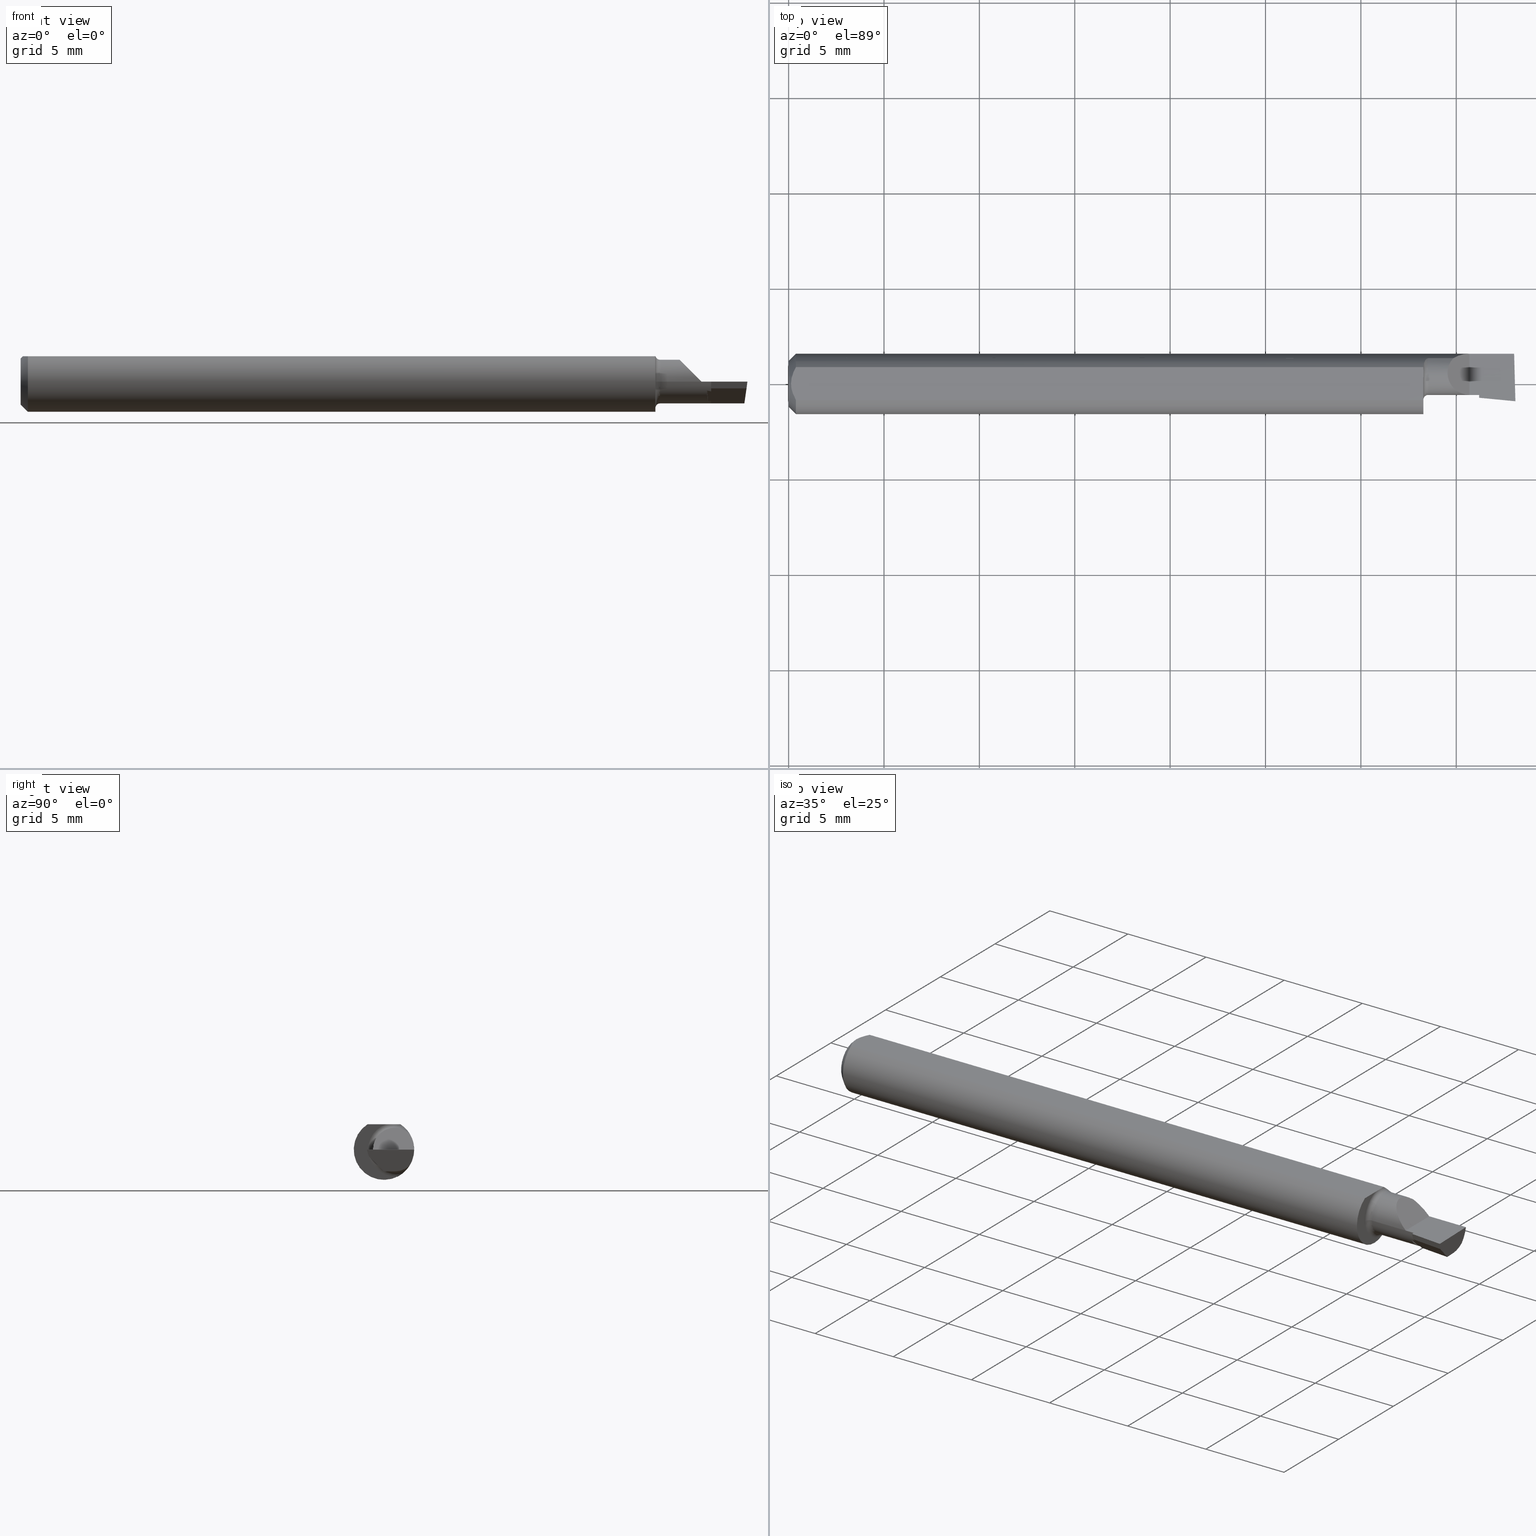
[diagram: canonical four-view strip — front | top / right | iso, engineering-drawing reading convention]
A machine part, canonical four-view strip (front | top / right | iso — engineering-drawing reading convention). The complete STEP part file that produces these views, byte-faithful:
ISO-10303-21;
HEADER;
FILE_DESCRIPTION (( 'STEP AP203' ),
    '1' );
FILE_NAME ('211839-LHB100150.STEP',
    '2024-08-22T21:21:53',
    ( '' ),
    ( '' ),
    'SwSTEP 2.0',
    'SolidWorks 2024',
    '' );
FILE_SCHEMA (( 'CONFIG_CONTROL_DESIGN' ));
ENDSEC;

DATA;
#1 = CALENDAR_DATE ( 2024, 22, 8 ) ;
#2 = CARTESIAN_POINT ( 'NONE',  ( 1.500000000000000222, 0.02239999999999998936, -0.04504999999999998589 ) ) ;
#3 = VERTEX_POINT ( 'NONE', #11 ) ;
#4 = PERSON_AND_ORGANIZATION ( #332, #501 ) ;
#5 = VECTOR ( 'NONE', #275, 39.37007874015747433 ) ;
#6 = LOCAL_TIME ( 14, 21, 53.00000000000000000, #223 ) ;
#7 = FACE_OUTER_BOUND ( 'NONE', #666, .T. ) ;
#8 = ORIENTED_EDGE ( 'NONE', *, *, #436, .T. ) ;
#9 = EDGE_CURVE ( 'NONE', #511, #424, #693, .T. ) ;
#10 = DIRECTION ( 'NONE',  ( -0.7071067811865432429, 0.000000000000000000, -0.7071067811865517916 ) ) ;
#11 = CARTESIAN_POINT ( 'NONE',  ( 0.004999999999989931769, 7.898418181085889318E-16, 0.05235000000000000070 ) ) ;
#12 = DATE_AND_TIME ( #657, #664 ) ;
#13 = EDGE_CURVE ( 'NONE', #648, #458, #558, .T. ) ;
#14 = CARTESIAN_POINT ( 'NONE',  ( 1.425000000000000266, -0.02842832138518472385, 9.604153102725926148E-18 ) ) ;
#15 = FACE_OUTER_BOUND ( 'NONE', #388, .T. ) ;
#16 = ORIENTED_EDGE ( 'NONE', *, *, #641, .T. ) ;
#17 = PERSON_AND_ORGANIZATION ( #332, #501 ) ;
#18 = AXIS2_PLACEMENT_3D ( 'NONE', #640, #270, #164 ) ;
#19 =( GEOMETRIC_REPRESENTATION_CONTEXT ( 3 ) GLOBAL_UNCERTAINTY_ASSIGNED_CONTEXT ( ( #672 ) ) GLOBAL_UNIT_ASSIGNED_CONTEXT ( ( #256, #516, #464 ) ) REPRESENTATION_CONTEXT ( 'NONE', 'WORKASPACE' ) );
#20 = DIRECTION ( 'NONE',  ( -1.000000000000000000, -0.000000000000000000, -0.000000000000000000 ) ) ;
#21 = ORIENTED_EDGE ( 'NONE', *, *, #651, .F. ) ;
#22 = MANIFOLD_SOLID_BREP ( 'Extrude7', #205 ) ;
#23 = EDGE_CURVE ( 'NONE', #385, #463, #404, .T. ) ;
#24 = CARTESIAN_POINT ( 'NONE',  ( 0.000000000000000000, 0.000000000000000000, 0.000000000000000000 ) ) ;
#25 = CARTESIAN_POINT ( 'NONE',  ( 0.004999999999989931769, 7.898418181085889318E-16, 0.05235000000000000070 ) ) ;
#26 = ORIENTED_EDGE ( 'NONE', *, *, #315, .F. ) ;
#27 = DIRECTION ( 'NONE',  ( -1.000000000000000000, 2.845674993400274571E-18, -0.000000000000000000 ) ) ;
#28 = CIRCLE ( 'NONE', #416, 0.009999999999999892655 ) ;
#29 = AXIS2_PLACEMENT_3D ( 'NONE', #105, #374, #478 ) ;
#30 = DIRECTION ( 'NONE',  ( -1.000000000000000000, 2.845674993400274571E-18, -0.000000000000000000 ) ) ;
#31 = EDGE_CURVE ( 'NONE', #458, #668, #504, .T. ) ;
#32 = DIRECTION ( 'NONE',  ( -8.593085830840275174E-19, -0.3019700370129922429, 0.9533174165755978757 ) ) ;
#33 = APPLICATION_CONTEXT ( 'configuration controlled 3d designs of mechanical parts and assemblies' ) ;
#34 = ORIENTED_EDGE ( 'NONE', *, *, #610, .T. ) ;
#35 = DIRECTION ( 'NONE',  ( -1.000000000000000000, 2.845674993400274571E-18, -0.000000000000000000 ) ) ;
#36 = CARTESIAN_POINT ( 'NONE',  ( 1.496746585366868887, -0.02723588404480196956, -0.02557432297574407931 ) ) ;
#37 = ORIENTED_EDGE ( 'NONE', *, *, #651, .T. ) ;
#38 = DIRECTION ( 'NONE',  ( 0.000000000000000000, 0.000000000000000000, -1.000000000000000000 ) ) ;
#39 = AXIS2_PLACEMENT_3D ( 'NONE', #457, #247, #622 ) ;
#40 = AXIS2_PLACEMENT_3D ( 'NONE', #541, #141, #345 ) ;
#41 = VERTEX_POINT ( 'NONE', #667 ) ;
#42 = AXIS2_PLACEMENT_3D ( 'NONE', #509, #27, #239 ) ;
#43 =( LENGTH_UNIT ( ) NAMED_UNIT ( * ) SI_UNIT ( $, .METRE. ) );
#44 = LINE ( 'NONE', #253, #480 ) ;
#45 = ADVANCED_FACE ( 'NONE', ( #130 ), #542, .T. ) ;
#46 = EDGE_LOOP ( 'NONE', ( #469, #244, #518, #682 ) ) ;
#47 = CARTESIAN_POINT ( 'NONE',  ( 1.310000000000000275, -0.03265000000000001235, 0.000000000000000000 ) ) ;
#48 = LINE ( 'NONE', #616, #471 ) ;
#49 = ORIENTED_EDGE ( 'NONE', *, *, #292, .F. ) ;
#50 = CARTESIAN_POINT ( 'NONE',  ( 1.405000000000000249, 0.06234999999999984999, 1.163414459189988826E-17 ) ) ;
#51 = DIRECTION ( 'NONE',  ( -2.845674993400274571E-18, -1.000000000000000000, 0.000000000000000000 ) ) ;
#52 = ORIENTED_EDGE ( 'NONE', *, *, #54, .T. ) ;
#53 = DIRECTION ( 'NONE',  ( -1.000000000000000000, -0.000000000000000000, -0.000000000000000000 ) ) ;
#54 = EDGE_CURVE ( 'NONE', #66, #505, #133, .T. ) ;
#55 = CARTESIAN_POINT ( 'NONE',  ( 0.009678036133109307534, -0.02325481837211496039, 0.05235000000000000070 ) ) ;
#56 = EDGE_LOOP ( 'NONE', ( #362, #566, #614, #311, #637 ) ) ;
#57 = COORDINATED_UNIVERSAL_TIME_OFFSET ( 8, 0, .BEHIND. ) ;
#58 = CARTESIAN_POINT ( 'NONE',  ( 1.320000000000000062, 0.05267366071428519758, 0.03336177403790670931 ) ) ;
#59 = ORIENTED_EDGE ( 'NONE', *, *, #128, .T. ) ;
#60 = PERSON_AND_ORGANIZATION ( #332, #501 ) ;
#61 = LINE ( 'NONE', #312, #597 ) ;
#62 = ORIENTED_EDGE ( 'NONE', *, *, #54, .F. ) ;
#63 = CALENDAR_DATE ( 2024, 22, 8 ) ;
#64 = CC_DESIGN_SECURITY_CLASSIFICATION ( #240, ( #346 ) ) ;
#65 = DIRECTION ( 'NONE',  ( -0.7071067811865516806, 0.000000000000000000, 0.7071067811865431318 ) ) ;
#66 = VERTEX_POINT ( 'NONE', #278 ) ;
#67 = APPLICATION_PROTOCOL_DEFINITION ( 'international standard', 'config_control_design', 1994, #33 ) ;
#68 = LINE ( 'NONE', #497, #336 ) ;
#69 = CARTESIAN_POINT ( 'NONE',  ( 1.310256932871702862, 0.02911433999418734653, 0.05235000000000000070 ) ) ;
#70 = MECHANICAL_CONTEXT ( 'NONE', #225, 'mechanical' ) ;
#71 = CARTESIAN_POINT ( 'NONE',  ( 0.000000000000000000, 0.02239999999999999977, 0.000000000000000000 ) ) ;
#72 = EDGE_LOOP ( 'NONE', ( #258, #21 ) ) ;
#73 = ADVANCED_FACE ( 'NONE', ( #547 ), #655, .F. ) ;
#74 = VECTOR ( 'NONE', #468, 39.37007874015748143 ) ;
#75 = VECTOR ( 'NONE', #53, 39.37007874015748143 ) ;
#76 = DIRECTION ( 'NONE',  ( -2.845674993400274956E-18, -1.000000000000000000, 0.000000000000000000 ) ) ;
#77 = LINE ( 'NONE', #489, #5 ) ;
#78 = CARTESIAN_POINT ( 'NONE',  ( 1.318537702541799472, 0.05267366071428532942, -0.03336177403790685503 ) ) ;
#79 = FACE_OUTER_BOUND ( 'NONE', #427, .T. ) ;
#80 = CC_DESIGN_PERSON_AND_ORGANIZATION_ASSIGNMENT ( #177, #604, ( #346 ) ) ;
#81 = ADVANCED_FACE ( 'NONE', ( #445 ), #440, .F. ) ;
#82 = ORIENTED_EDGE ( 'NONE', *, *, #662, .F. ) ;
#83 = DIRECTION ( 'NONE',  ( 0.02677973311238900783, -0.9996413586354002678, 2.516261953573446749E-16 ) ) ;
#84 = CIRCLE ( 'NONE', #121, 0.04505000000000000671 ) ;
#85 = AXIS2_PLACEMENT_3D ( 'NONE', #228, #173, #601 ) ;
#86 = DIRECTION ( 'NONE',  ( 0.1175789623991727040, 0.000000000000000000, 0.9930635365378863710 ) ) ;
#87 = CARTESIAN_POINT ( 'NONE',  ( 1.420965656909965347, 0.002454328612438455830, -0.04039634369917824430 ) ) ;
#88 = DIRECTION ( 'NONE',  ( 0.000000000000000000, 0.000000000000000000, 1.000000000000000000 ) ) ;
#89 = ORIENTED_EDGE ( 'NONE', *, *, #462, .F. ) ;
#90 = CARTESIAN_POINT ( 'NONE',  ( 0.01500000000000000465, 7.635672792683746671E-18, 0.06235000000000000264 ) ) ;
#91 =( BOUNDED_CURVE ( )  B_SPLINE_CURVE ( 3, ( #481, #692, #426, #124 ),
 .UNSPECIFIED., .F., .F. ) 
 B_SPLINE_CURVE_WITH_KNOTS ( ( 4, 4 ),
 ( 5.546277306536656404, 7.853981633974482790 ),
 .UNSPECIFIED. ) 
 CURVE ( )  GEOMETRIC_REPRESENTATION_ITEM ( )  RATIONAL_B_SPLINE_CURVE ( ( 1.000000000000000000, 0.6033122017620001776, 0.6033122017620001776, 1.000000000000000000 ) ) 
 REPRESENTATION_ITEM ( '' )  );
#92 = CARTESIAN_POINT ( 'NONE',  ( 1.372500000000000275, 0.05267366071428571800, 0.03336177403790620971 ) ) ;
#93 = EDGE_LOOP ( 'NONE', ( #522, #248, #653, #325 ) ) ;
#94 = CARTESIAN_POINT ( 'NONE',  ( 1.417174806059530834, -0.01419764798055399985, -0.02834783174770362860 ) ) ;
#95 = CC_DESIGN_PERSON_AND_ORGANIZATION_ASSIGNMENT ( #477, #649, ( #240 ) ) ;
#96 = ADVANCED_FACE ( 'NONE', ( #79 ), #493, .T. ) ;
#97 = CARTESIAN_POINT ( 'NONE',  ( 1.492807588596031021, 0.03372388044486961112, -0.04504999999999999977 ) ) ;
#98 = VECTOR ( 'NONE', #507, 39.37007874015748854 ) ;
#99 = AXIS2_PLACEMENT_3D ( 'NONE', #669, #349, #654 ) ;
#100 = ORIENTED_EDGE ( 'NONE', *, *, #273, .F. ) ;
#101 = B_SPLINE_CURVE_WITH_KNOTS ( 'NONE', 3,
 ( #221, #259, #55, #156, #214, #167 ),
 .UNSPECIFIED., .F., .F.,
 ( 4, 2, 4 ),
 ( 0.002133667072902290657, 0.002585433046183636171, 0.003037199019464981685 ),
 .UNSPECIFIED. ) ;
#102 = LINE ( 'NONE', #36, #182 ) ;
#103 = EDGE_LOOP ( 'NONE', ( #680, #201, #317, #351 ) ) ;
#104 = DIRECTION ( 'NONE',  ( -0.9953961983671787417, 0.09584575252022452252, 1.945710349607429389E-16 ) ) ;
#105 = CARTESIAN_POINT ( 'NONE',  ( 1.425000000000000266, 0.02239999999999999630, 0.000000000000000000 ) ) ;
#106 = ORIENTED_EDGE ( 'NONE', *, *, #255, .F. ) ;
#107 = EDGE_CURVE ( 'NONE', #185, #438, #525, .T. ) ;
#108 = ORIENTED_EDGE ( 'NONE', *, *, #462, .T. ) ;
#109 = ADVANCED_FACE ( 'NONE', ( #398 ), #335, .T. ) ;
#110 = LINE ( 'NONE', #475, #472 ) ;
#111 = DIRECTION ( 'NONE',  ( -1.000000000000000000, -0.000000000000000000, -0.000000000000000000 ) ) ;
#112 = VERTEX_POINT ( 'NONE', #446 ) ;
#113 = SHAPE_DEFINITION_REPRESENTATION ( #687, #423 ) ;
#114 = CARTESIAN_POINT ( 'NONE',  ( 1.316045261487122531, 0.05110091261051565720, 0.03573737896485319754 ) ) ;
#115 = ORIENTED_EDGE ( 'NONE', *, *, #610, .F. ) ;
#116 = PERSON_AND_ORGANIZATION_ROLE ( 'design_supplier' ) ;
#117 = EDGE_CURVE ( 'NONE', #569, #157, #277, .T. ) ;
#118 = CARTESIAN_POINT ( 'NONE',  ( 1.425000000000000266, -0.03811778168130169203, 0.0003065779411205560951 ) ) ;
#119 = ORIENTED_EDGE ( 'NONE', *, *, #338, .T. ) ;
#120 = CALENDAR_DATE ( 2024, 22, 8 ) ;
#121 = AXIS2_PLACEMENT_3D ( 'NONE', #282, #552, #660 ) ;
#122 = DIRECTION ( 'NONE',  ( -2.845674993400274571E-18, -1.000000000000000000, 0.000000000000000000 ) ) ;
#123 = COORDINATED_UNIVERSAL_TIME_OFFSET ( 8, 0, .BEHIND. ) ;
#124 = CARTESIAN_POINT ( 'NONE',  ( 1.405000000000000249, -0.02265000000000006591, 1.163414459189988826E-17 ) ) ;
#125 = B_SPLINE_CURVE_WITH_KNOTS ( 'NONE', 3,
 ( #647, #644, #160, #377, #319, #418, #114, #361, #591, #593 ),
 .UNSPECIFIED., .F., .F.,
 ( 4, 2, 2, 2, 4 ),
 ( 3.634625588760946625E-07, 0.0003783602501879811749, 0.0005673586440025336040, 0.0006618578409098096289, 0.0007563570378170856538 ),
 .UNSPECIFIED. ) ;
#126 = DIRECTION ( 'NONE',  ( 0.000000000000000000, 0.000000000000000000, -1.000000000000000000 ) ) ;
#127 = CC_DESIGN_PERSON_AND_ORGANIZATION_ASSIGNMENT ( #171, #230, ( #579 ) ) ;
#128 = EDGE_CURVE ( 'NONE', #176, #645, #77, .T. ) ;
#129 = APPROVAL_STATUS ( 'not_yet_approved' ) ;
#130 = FACE_OUTER_BOUND ( 'NONE', #466, .T. ) ;
#131 = EDGE_LOOP ( 'NONE', ( #261, #606, #154, #474, #106, #479 ) ) ;
#132 = AXIS2_PLACEMENT_3D ( 'NONE', #406, #454, #86 ) ;
#133 = LINE ( 'NONE', #287, #676 ) ;
#134 = ORIENTED_EDGE ( 'NONE', *, *, #450, .T. ) ;
#135 = ADVANCED_FACE ( 'NONE', ( #15 ), #555, .F. ) ;
#136 = CARTESIAN_POINT ( 'NONE',  ( 1.320000000000000062, 0.02239999999999999630, 0.000000000000000000 ) ) ;
#137 = EDGE_LOOP ( 'NONE', ( #562, #59, #254, #487, #252, #447 ) ) ;
#138 = DIRECTION ( 'NONE',  ( 1.000000000000000000, -2.845674993400274571E-18, 0.000000000000000000 ) ) ;
#139 = DIRECTION ( 'NONE',  ( 0.1199690778467064900, -0.3102690083707259627, 0.9430485474275739355 ) ) ;
#140 = VERTEX_POINT ( 'NONE', #229 ) ;
#141 = DIRECTION ( 'NONE',  ( -1.000000000000000000, -0.000000000000000000, -0.000000000000000000 ) ) ;
#142 = CC_DESIGN_APPROVAL ( #543, ( #346 ) ) ;
#143 = DIRECTION ( 'NONE',  ( -1.000000000000000000, -0.000000000000000000, -0.000000000000000000 ) ) ;
#144 = VERTEX_POINT ( 'NONE', #178 ) ;
#145 = CARTESIAN_POINT ( 'NONE',  ( 1.310000000000000275, 0.02239999999999999630, 0.000000000000000000 ) ) ;
#146 = CARTESIAN_POINT ( 'NONE',  ( 1.493007492022672800, 0.04428776192107808374, -0.04097143695815298747 ) ) ;
#147 = ORIENTED_EDGE ( 'NONE', *, *, #246, .T. ) ;
#148 = EDGE_CURVE ( 'NONE', #648, #199, #28, .T. ) ;
#149 = DIRECTION ( 'NONE',  ( 0.000000000000000000, 0.000000000000000000, 1.000000000000000000 ) ) ;
#150 = CARTESIAN_POINT ( 'NONE',  ( 1.493110947889332518, 0.02239999999999998936, -0.04504999999999998589 ) ) ;
#151 = ORIENTED_EDGE ( 'NONE', *, *, #344, .T. ) ;
#152 = CARTESIAN_POINT ( 'NONE',  ( 1.317380869089463058, 0.05205930255399779383, -0.03433183488607109701 ) ) ;
#153 = FACE_OUTER_BOUND ( 'NONE', #103, .T. ) ;
#154 = ORIENTED_EDGE ( 'NONE', *, *, #670, .F. ) ;
#155 = EDGE_CURVE ( 'NONE', #505, #199, #84, .T. ) ;
#156 = CARTESIAN_POINT ( 'NONE',  ( 0.006057557792978140489, -0.01187252718384441616, 0.05234999999999998682 ) ) ;
#157 = VERTEX_POINT ( 'NONE', #284 ) ;
#158 = CARTESIAN_POINT ( 'NONE',  ( 1.418816209675800577, 0.002848980343177142174, -0.04058645254735287339 ) ) ;
#159 = CARTESIAN_POINT ( 'NONE',  ( 1.425000000000000266, -0.03811778168130169203, 0.0003065779411205560951 ) ) ;
#160 = CARTESIAN_POINT ( 'NONE',  ( 1.311047180432317827, 0.04185659023926306677, 0.04646513869620316761 ) ) ;
#161 = VERTEX_POINT ( 'NONE', #495 ) ;
#162 = VECTOR ( 'NONE', #503, 39.37007874015748143 ) ;
#163 = DIRECTION ( 'NONE',  ( 0.000000000000000000, -1.000000000000000000, 2.514938169328494119E-16 ) ) ;
#164 = DIRECTION ( 'NONE',  ( 0.000000000000000000, -1.000000000000000000, 0.000000000000000000 ) ) ;
#165 = DATE_AND_TIME ( #386, #357 ) ;
#166 = EDGE_CURVE ( 'NONE', #3, #391, #584, .T. ) ;
#167 = CARTESIAN_POINT ( 'NONE',  ( 0.004999999999989931769, 7.898418181085889318E-16, 0.05235000000000000070 ) ) ;
#168 = ORIENTED_EDGE ( 'NONE', *, *, #31, .T. ) ;
#169 = CARTESIAN_POINT ( 'NONE',  ( 1.418816209675800577, 0.002848980343177142174, -0.04058645254735287339 ) ) ;
#170 = ORIENTED_EDGE ( 'NONE', *, *, #662, .T. ) ;
#171 = PERSON_AND_ORGANIZATION ( #332, #501 ) ;
#172 = VECTOR ( 'NONE', #322, 39.37007874015748143 ) ;
#173 = DIRECTION ( 'NONE',  ( -1.000000000000000000, 2.845674993400274571E-18, -0.000000000000000000 ) ) ;
#174 = ADVANCED_FACE ( 'NONE', ( #257 ), #298, .F. ) ;
#175 = DIRECTION ( 'NONE',  ( 0.000000000000000000, 0.000000000000000000, 1.000000000000000000 ) ) ;
#176 = VERTEX_POINT ( 'NONE', #517 ) ;
#177 = PERSON_AND_ORGANIZATION ( #332, #501 ) ;
#178 = CARTESIAN_POINT ( 'NONE',  ( 1.493110947889332518, 0.02239999999999998936, -0.04504999999999998589 ) ) ;
#179 = ORIENTED_EDGE ( 'NONE', *, *, #237, .T. ) ;
#180 = CARTESIAN_POINT ( 'NONE',  ( 1.416312101933617340, -0.02315717289084237226, -0.01399999999999999856 ) ) ;
#181 = ORIENTED_EDGE ( 'NONE', *, *, #203, .F. ) ;
#182 = VECTOR ( 'NONE', #139, 39.37007874015748143 ) ;
#183 = AXIS2_PLACEMENT_3D ( 'NONE', #145, #35, #453 ) ;
#184 = CARTESIAN_POINT ( 'NONE',  ( 0.01500000000000000465, 0.03386738844375223462, 0.05234999999999997988 ) ) ;
#185 = VERTEX_POINT ( 'NONE', #413 ) ;
#186 = FACE_OUTER_BOUND ( 'NONE', #93, .T. ) ;
#187 = DIRECTION ( 'NONE',  ( 0.06836202603457075533, 0.7099667855717582965, 0.7009092642998475675 ) ) ;
#188 = FACE_OUTER_BOUND ( 'NONE', #348, .T. ) ;
#189 = LINE ( 'NONE', #306, #280 ) ;
#190 = ORIENTED_EDGE ( 'NONE', *, *, #166, .F. ) ;
#191 = PLANE ( 'NONE',  #551 ) ;
#192 = AXIS2_PLACEMENT_3D ( 'NONE', #234, #658, #339 ) ;
#193 = VECTOR ( 'NONE', #245, 39.37007874015748143 ) ;
#194 = DIRECTION ( 'NONE',  ( -0.9953961983671787417, 0.09584575252022423109, -2.590031292737189586E-17 ) ) ;
#195 = ADVANCED_FACE ( 'NONE', ( #198 ), #565, .F. ) ;
#196 = ORIENTED_EDGE ( 'NONE', *, *, #155, .T. ) ;
#197 = APPLICATION_PROTOCOL_DEFINITION ( 'international standard', 'config_control_design', 1994, #225 ) ;
#198 = FACE_OUTER_BOUND ( 'NONE', #137, .T. ) ;
#199 = VERTEX_POINT ( 'NONE', #409 ) ;
#200 = DIRECTION ( 'NONE',  ( -1.000000000000000000, 2.845674993400274571E-18, -0.000000000000000000 ) ) ;
#201 = ORIENTED_EDGE ( 'NONE', *, *, #421, .T. ) ;
#202 = CARTESIAN_POINT ( 'NONE',  ( 1.497374644593940651, 0.06234999999999984999, 4.356084699862640356E-19 ) ) ;
#203 = EDGE_CURVE ( 'NONE', #619, #511, #189, .T. ) ;
#204 = CARTESIAN_POINT ( 'NONE',  ( 1.493683825247659858, 0.05267366071428571800, -0.03336177403790620971 ) ) ;
#205 = CLOSED_SHELL ( 'NONE', ( #45, #81, #283, #470, #265, #109, #96, #135, #195, #367, #444, #563, #227, #598, #356, #519, #618, #73, #174 ) ) ;
#206 = AXIS2_PLACEMENT_3D ( 'NONE', #2, #527, #163 ) ;
#207 = EDGE_LOOP ( 'NONE', ( #455, #553, #115, #196 ) ) ;
#208 = DIRECTION ( 'NONE',  ( 0.9953961983671787417, -0.09584575252022420333, -0.000000000000000000 ) ) ;
#209 = LINE ( 'NONE', #118, #219 ) ;
#210 = ORIENTED_EDGE ( 'NONE', *, *, #376, .T. ) ;
#211 = LINE ( 'NONE', #467, #75 ) ;
#212 = DIRECTION ( 'NONE',  ( -1.999237020619924810E-18, -0.7025528302622683352, 0.7116315905652842444 ) ) ;
#213 = COORDINATED_UNIVERSAL_TIME_OFFSET ( 8, 0, .BEHIND. ) ;
#214 = CARTESIAN_POINT ( 'NONE',  ( 0.004999999999998879473, -0.005957634400466955450, 0.05235000000000000070 ) ) ;
#215 = VECTOR ( 'NONE', #514, 39.37007874015748143 ) ;
#216 = CC_DESIGN_DATE_AND_TIME_ASSIGNMENT ( #220, #588, ( #617 ) ) ;
#217 = ORIENTED_EDGE ( 'NONE', *, *, #397, .T. ) ;
#218 = EDGE_CURVE ( 'NONE', #161, #140, #499, .T. ) ;
#219 = VECTOR ( 'NONE', #369, 39.37007874015748143 ) ;
#220 = DATE_AND_TIME ( #63, #6 ) ;
#221 = CARTESIAN_POINT ( 'NONE',  ( 0.01500000000000185039, -0.03386738844380016850, 0.05235000000000000070 ) ) ;
#222 = CARTESIAN_POINT ( 'NONE',  ( 1.310419621069756513, 0.02436103386466079157, 0.05234999999999998682 ) ) ;
#223 = COORDINATED_UNIVERSAL_TIME_OFFSET ( 8, 0, .BEHIND. ) ;
#224 = FACE_OUTER_BOUND ( 'NONE', #414, .T. ) ;
#225 = APPLICATION_CONTEXT ( 'configuration controlled 3d designs of mechanical parts and assemblies' ) ;
#226 = ORIENTED_EDGE ( 'NONE', *, *, #421, .F. ) ;
#227 = ADVANCED_FACE ( 'NONE', ( #153 ), #684, .F. ) ;
#228 = CARTESIAN_POINT ( 'NONE',  ( 0.000000000000000000, 0.02239999999999999977, 0.000000000000000000 ) ) ;
#229 = CARTESIAN_POINT ( 'NONE',  ( 0.000000000000000000, 0.000000000000000000, -0.04734999999999965625 ) ) ;
#230 = PERSON_AND_ORGANIZATION_ROLE ( 'design_owner' ) ;
#231 = AXIS2_PLACEMENT_3D ( 'NONE', #452, #602, #126 ) ;
#232 = CC_DESIGN_APPROVAL ( #589, ( #240 ) ) ;
#233 = CARTESIAN_POINT ( 'NONE',  ( 1.422402899020165590, -0.01812047455623713721, -0.01969584104371080793 ) ) ;
#234 = CARTESIAN_POINT ( 'NONE',  ( 1.500000000000000222, 0.1123499999999999915, 0.05234999999999998682 ) ) ;
#235 = CARTESIAN_POINT ( 'NONE',  ( 0.004999999999999268051, 0.005945714695019511074, 0.05235000000000000070 ) ) ;
#236 = ORIENTED_EDGE ( 'NONE', *, *, #155, .F. ) ;
#237 = EDGE_CURVE ( 'NONE', #381, #272, #671, .T. ) ;
#238 = AXIS2_PLACEMENT_3D ( 'NONE', #372, #375, #535 ) ;
#239 = DIRECTION ( 'NONE',  ( 0.000000000000000000, -1.000000000000000000, 0.000000000000000000 ) ) ;
#240 = SECURITY_CLASSIFICATION ( '', '', #490 ) ;
#241 = DIRECTION ( 'NONE',  ( 0.000000000000000000, 0.000000000000000000, 1.000000000000000000 ) ) ;
#242 = LINE ( 'NONE', #405, #392 ) ;
#243 = PLANE ( 'NONE',  #380 ) ;
#244 = ORIENTED_EDGE ( 'NONE', *, *, #496, .T. ) ;
#245 = DIRECTION ( 'NONE',  ( 0.7071067811865395791, 8.659560562355030233E-17, 0.7071067811865554553 ) ) ;
#246 = EDGE_CURVE ( 'NONE', #157, #673, #642, .T. ) ;
#247 = DIRECTION ( 'NONE',  ( 1.000000000000000000, -2.845674993400274571E-18, 0.000000000000000000 ) ) ;
#248 = ORIENTED_EDGE ( 'NONE', *, *, #324, .T. ) ;
#249 = CARTESIAN_POINT ( 'NONE',  ( 1.310000000000000497, 0.03531759654985763136, -0.05169891940248810130 ) ) ;
#250 = TOROIDAL_SURFACE ( 'NONE', #631, 0.05505000000000000171, 0.009999999999999809389 ) ;
#251 = DIRECTION ( 'NONE',  ( 1.000000000000000000, 0.000000000000000000, 0.000000000000000000 ) ) ;
#252 = ORIENTED_EDGE ( 'NONE', *, *, #315, .T. ) ;
#253 = CARTESIAN_POINT ( 'NONE',  ( -1.281976584526598441E-19, -0.02264999999999999306, 1.836970198721035850E-16 ) ) ;
#254 = ORIENTED_EDGE ( 'NONE', *, *, #450, .F. ) ;
#255 = EDGE_CURVE ( 'NONE', #66, #144, #559, .T. ) ;
#256 =( CONVERSION_BASED_UNIT ( 'INCH', #314 ) LENGTH_UNIT ( ) NAMED_UNIT ( #603 ) );
#257 = FACE_OUTER_BOUND ( 'NONE', #131, .T. ) ;
#258 = ORIENTED_EDGE ( 'NONE', *, *, #307, .T. ) ;
#259 = CARTESIAN_POINT ( 'NONE',  ( 0.01216137397042175820, -0.02864146636719541034, 0.05235000000000000070 ) ) ;
#260 = CIRCLE ( 'NONE', #42, 0.04505000000000000671 ) ;
#261 = ORIENTED_EDGE ( 'NONE', *, *, #128, .F. ) ;
#262 = PLANE ( 'NONE',  #686 ) ;
#263 = CARTESIAN_POINT ( 'NONE',  ( 1.310000000000000275, 0.03032991071428571203, -0.05447585718521057163 ) ) ;
#264 = ORIENTED_EDGE ( 'NONE', *, *, #166, .T. ) ;
#265 = ADVANCED_FACE ( 'NONE', ( #557 ), #243, .F. ) ;
#266 = CARTESIAN_POINT ( 'NONE',  ( 0.01500000000000185039, -0.03386738844380016850, 0.05235000000000000070 ) ) ;
#267 = ORIENTED_EDGE ( 'NONE', *, *, #237, .F. ) ;
#268 = APPROVAL_ROLE ( '' ) ;
#269 = CARTESIAN_POINT ( 'NONE',  ( 1.500000000000000222, 0.02239999999999998936, -0.04504999999999998589 ) ) ;
#270 = DIRECTION ( 'NONE',  ( -1.000000000000000000, 2.845674993400274571E-18, -0.000000000000000000 ) ) ;
#271 = CARTESIAN_POINT ( 'NONE',  ( 1.405000000000000249, -0.2500000000000000555, 1.163414459189988826E-17 ) ) ;
#272 = VERTEX_POINT ( 'NONE', #353 ) ;
#273 = EDGE_CURVE ( 'NONE', #511, #112, #48, .T. ) ;
#274 = CARTESIAN_POINT ( 'NONE',  ( 0.01500000000000000465, 0.000000000000000000, -0.06235000000000000264 ) ) ;
#275 = DIRECTION ( 'NONE',  ( -0.02677973311238899048, 0.9996413586354004899, 3.644900082579197311E-18 ) ) ;
#276 = PERSON_AND_ORGANIZATION ( #332, #501 ) ;
#277 =( BOUNDED_CURVE ( )  B_SPLINE_CURVE ( 3, ( #494, #328, #233, #665 ),
 .UNSPECIFIED., .F., .F. ) 
 B_SPLINE_CURVE_WITH_KNOTS ( ( 4, 4 ),
 ( 2.789458599401964278, 2.827856182169776744 ),
 .UNSPECIFIED. ) 
 CURVE ( )  GEOMETRIC_REPRESENTATION_ITEM ( )  RATIONAL_B_SPLINE_CURVE ( ( 1.000000000000000000, 0.9998771392436758276, 0.9998771392436758276, 1.000000000000000000 ) ) 
 REPRESENTATION_ITEM ( '' )  );
#278 = CARTESIAN_POINT ( 'NONE',  ( 1.493683825247659858, 0.05267366071428571800, -0.03336177403790620971 ) ) ;
#279 = ORIENTED_EDGE ( 'NONE', *, *, #218, .T. ) ;
#280 = VECTOR ( 'NONE', #194, 39.37007874015748143 ) ;
#281 = VECTOR ( 'NONE', #379, 39.37007874015748854 ) ;
#282 = CARTESIAN_POINT ( 'NONE',  ( 1.320000000000000062, 0.02239999999999999630, 0.000000000000000000 ) ) ;
#283 = ADVANCED_FACE ( 'NONE', ( #568 ), #607, .T. ) ;
#284 = CARTESIAN_POINT ( 'NONE',  ( 1.425000000000000266, -0.01786177170425026425, -0.02021119094053668713 ) ) ;
#285 = ORIENTED_EDGE ( 'NONE', *, *, #523, .F. ) ;
#286 = DIRECTION ( 'NONE',  ( 0.09140971883575738088, 0.9493262270931226432, 0.3007057995042743404 ) ) ;
#287 = CARTESIAN_POINT ( 'NONE',  ( 1.372500000000000275, 0.05267366071428571800, -0.03336177403790620971 ) ) ;
#288 = ORIENTED_EDGE ( 'NONE', *, *, #523, .T. ) ;
#289 = LINE ( 'NONE', #621, #678 ) ;
#290 = AXIS2_PLACEMENT_3D ( 'NONE', #384, #564, #122 ) ;
#291 = CARTESIAN_POINT ( 'NONE',  ( 0.000000000000000000, 0.03386738844375223462, 0.05234999999999997988 ) ) ;
#292 = EDGE_CURVE ( 'NONE', #463, #458, #461, .T. ) ;
#293 = FACE_OUTER_BOUND ( 'NONE', #515, .T. ) ;
#294 = DIRECTION ( 'NONE',  ( 0.000000000000000000, 0.000000000000000000, -1.000000000000000000 ) ) ;
#295 = DESIGN_CONTEXT ( 'detailed design', #33, 'design' ) ;
#296 = ORIENTED_EDGE ( 'NONE', *, *, #389, .T. ) ;
#297 = LINE ( 'NONE', #274, #482 ) ;
#298 = PLANE ( 'NONE',  #132 ) ;
#299 = ORIENTED_EDGE ( 'NONE', *, *, #9, .F. ) ;
#300 = DIRECTION ( 'NONE',  ( -0.09584575252022452252, -0.9953961983671787417, 0.000000000000000000 ) ) ;
#301 = AXIS2_PLACEMENT_3D ( 'NONE', #675, #347, #294 ) ;
#302 = VECTOR ( 'NONE', #420, 39.37007874015748854 ) ;
#303 = CARTESIAN_POINT ( 'NONE',  ( 1.310000000000000275, 0.1123499999999999915, 0.05234999999999998682 ) ) ;
#304 = ORIENTED_EDGE ( 'NONE', *, *, #590, .T. ) ;
#305 = DIRECTION ( 'NONE',  ( 1.000000000000000000, 0.000000000000000000, 0.000000000000000000 ) ) ;
#306 = CARTESIAN_POINT ( 'NONE',  ( 1.497809367091943011, -0.0003505926069906044741, -0.04504999999999997201 ) ) ;
#307 = EDGE_CURVE ( 'NONE', #432, #569, #573, .T. ) ;
#308 = ORIENTED_EDGE ( 'NONE', *, *, #641, .F. ) ;
#309 = CARTESIAN_POINT ( 'NONE',  ( 1.310000000000000275, 0.03032991071428571203, -0.05447585718521057163 ) ) ;
#310 = CARTESIAN_POINT ( 'NONE',  ( 1.425000000000000266, 0.001673552391433375322, -0.03999896085561901321 ) ) ;
#311 = ORIENTED_EDGE ( 'NONE', *, *, #411, .F. ) ;
#312 = CARTESIAN_POINT ( 'NONE',  ( 2.249639673992802012E-32, 0.06234999999999999570, 1.836970198721035850E-16 ) ) ;
#313 = ORIENTED_EDGE ( 'NONE', *, *, #554, .F. ) ;
#314 = LENGTH_MEASURE_WITH_UNIT ( LENGTH_MEASURE( 0.02539999999999999897 ), #43 );
#315 = EDGE_CURVE ( 'NONE', #399, #673, #44, .T. ) ;
#316 = CARTESIAN_POINT ( 'NONE',  ( 0.01500000000000000465, 0.03386738844375223462, 0.05234999999999997988 ) ) ;
#317 = ORIENTED_EDGE ( 'NONE', *, *, #533, .T. ) ;
#318 = PERSON_AND_ORGANIZATION ( #332, #501 ) ;
#319 = CARTESIAN_POINT ( 'NONE',  ( 1.313772805890642825, 0.04842073308978434021, 0.03934539127329839125 ) ) ;
#320 = ORIENTED_EDGE ( 'NONE', *, *, #683, .F. ) ;
#321 =( BOUNDED_CURVE ( )  B_SPLINE_CURVE ( 3, ( #425, #352, #94, #360 ),
 .UNSPECIFIED., .F., .F. ) 
 B_SPLINE_CURVE_WITH_KNOTS ( ( 4, 4 ),
 ( 5.161300211869626509, 5.856340895040212935 ),
 .UNSPECIFIED. ) 
 CURVE ( )  GEOMETRIC_REPRESENTATION_ITEM ( )  RATIONAL_B_SPLINE_CURVE ( ( 1.000000000000000000, 0.9601467289652723114, 0.9601467289652723114, 1.000000000000000000 ) ) 
 REPRESENTATION_ITEM ( '' )  );
#322 = DIRECTION ( 'NONE',  ( -0.000000000000000000, 1.000000000000000000, -0.000000000000000000 ) ) ;
#323 = CC_DESIGN_PERSON_AND_ORGANIZATION_ASSIGNMENT ( #318, #373, ( #617 ) ) ;
#324 = EDGE_CURVE ( 'NONE', #41, #176, #102, .T. ) ;
#325 = ORIENTED_EDGE ( 'NONE', *, *, #533, .F. ) ;
#326 = APPROVAL_STATUS ( 'not_yet_approved' ) ;
#327 = CARTESIAN_POINT ( 'NONE',  ( 1.416750140823865189, -0.01860796507907701292, -0.01865071848678225355 ) ) ;
#328 = CARTESIAN_POINT ( 'NONE',  ( 1.419652608058626031, -0.01836923624422850954, -0.01917561964433141253 ) ) ;
#329 = DATE_AND_TIME ( #120, #526 ) ;
#330 = LINE ( 'NONE', #90, #193 ) ;
#331 = DIRECTION ( 'NONE',  ( -1.000000000000000000, 2.845674993400274571E-18, -0.000000000000000000 ) ) ;
#332 = PERSON ( 'UNSPECIFIED', 'UNSPECIFIED', 'UNSPECIFIED', ('UNSPECIFIED'), ('UNSPECIFIED'), ('UNSPECIFIED') ) ;
#333 = DIRECTION ( 'NONE',  ( -1.000000000000000000, 0.000000000000000000, 0.000000000000000000 ) ) ;
#334 = AXIS2_PLACEMENT_3D ( 'NONE', #358, #200, #679 ) ;
#335 = CONICAL_SURFACE ( 'NONE', #231, 0.06235000000000000264, 0.7853981633974594923 ) ;
#336 = VECTOR ( 'NONE', #32, 39.37007874015748143 ) ;
#337 = APPROVAL ( #326, 'UNSPECIFIED' ) ;
#338 = EDGE_CURVE ( 'NONE', #391, #668, #343, .T. ) ;
#339 = DIRECTION ( 'NONE',  ( 0.000000000000000000, 1.000000000000000000, -7.598598113218357399E-17 ) ) ;
#340 = CARTESIAN_POINT ( 'NONE',  ( 0.009669996313769784607, 0.02323004575534281385, 0.05234999999999998682 ) ) ;
#341 = ORIENTED_EDGE ( 'NONE', *, *, #307, .F. ) ;
#342 = CARTESIAN_POINT ( 'NONE',  ( 1.520449954079481358, -0.03761910661399675559, -2.504397080614711889E-18 ) ) ;
#343 = LINE ( 'NONE', #291, #162 ) ;
#344 = EDGE_CURVE ( 'NONE', #645, #66, #400, .T. ) ;
#345 = DIRECTION ( 'NONE',  ( 0.000000000000000000, 0.000000000000000000, 1.000000000000000000 ) ) ;
#346 = PRODUCT_DEFINITION_FORMATION_WITH_SPECIFIED_SOURCE ( 'ANY', '', #579, .NOT_KNOWN. ) ;
#347 = DIRECTION ( 'NONE',  ( 1.000000000000000000, 0.000000000000000000, 0.000000000000000000 ) ) ;
#348 = EDGE_LOOP ( 'NONE', ( #100, #594, #677 ) ) ;
#349 = DIRECTION ( 'NONE',  ( -1.000000000000000000, -0.000000000000000000, -0.000000000000000000 ) ) ;
#350 = DIRECTION ( 'NONE',  ( -0.000000000000000000, 1.000000000000000000, -2.514938169328494612E-16 ) ) ;
#351 = ORIENTED_EDGE ( 'NONE', *, *, #492, .F. ) ;
#352 = CARTESIAN_POINT ( 'NONE',  ( 1.417892081447277297, -0.006748458262999814349, -0.03596324211462059023 ) ) ;
#353 = CARTESIAN_POINT ( 'NONE',  ( 1.371638225962093394, 0.05267366071428571106, 0.03336177403790623053 ) ) ;
#354 = EDGE_LOOP ( 'NONE', ( #634, #395, #264, #574, #407 ) ) ;
#355 = CARTESIAN_POINT ( 'NONE',  ( 1.310579206429430821, 0.03988586008976090919, -0.04823973116775163300 ) ) ;
#356 = ADVANCED_FACE ( 'NONE', ( #422 ), #633, .F. ) ;
#357 = LOCAL_TIME ( 14, 21, 53.00000000000000000, #485 ) ;
#358 = CARTESIAN_POINT ( 'NONE',  ( 1.425000000000000266, 0.02239999999999999630, 0.000000000000000000 ) ) ;
#359 = ORIENTED_EDGE ( 'NONE', *, *, #376, .F. ) ;
#360 = CARTESIAN_POINT ( 'NONE',  ( 1.416750140823865189, -0.01860796507907701292, -0.01865071848678225355 ) ) ;
#361 = CARTESIAN_POINT ( 'NONE',  ( 1.317655921777289851, 0.05218794095652969783, 0.03413037274368479340 ) ) ;
#362 = ORIENTED_EDGE ( 'NONE', *, *, #13, .F. ) ;
#363 = CARTESIAN_POINT ( 'NONE',  ( 1.496798664296262960, -0.02125148920536149705, -0.02378043370423057329 ) ) ;
#364 = CARTESIAN_POINT ( 'NONE',  ( 1.405000000000000249, -0.2500000000000000555, 1.163414459189988826E-17 ) ) ;
#365 = PRODUCT_RELATED_PRODUCT_CATEGORY ( 'detail', '', ( #579 ) ) ;
#366 = CARTESIAN_POINT ( 'NONE',  ( 1.310000000000000275, 0.005371200864417923979, 0.05235000000000000070 ) ) ;
#367 = ADVANCED_FACE ( 'NONE', ( #7 ), #521, .F. ) ;
#368 = CARTESIAN_POINT ( 'NONE',  ( 1.493709846473882719, 4.414633138857365332E-05, -0.04504999999999997201 ) ) ;
#369 = DIRECTION ( 'NONE',  ( -1.999237020619924810E-18, -0.7025528302622683352, 0.7116315905652842444 ) ) ;
#370 = AXIS2_PLACEMENT_3D ( 'NONE', #465, #143, #88 ) ;
#371 = AXIS2_PLACEMENT_3D ( 'NONE', #560, #138, #674 ) ;
#372 = CARTESIAN_POINT ( 'NONE',  ( 1.310000000000000275, 0.000000000000000000, 0.000000000000000000 ) ) ;
#373 = PERSON_AND_ORGANIZATION_ROLE ( 'creator' ) ;
#374 = DIRECTION ( 'NONE',  ( -1.000000000000000000, 2.845674993400274571E-18, -0.000000000000000000 ) ) ;
#375 = DIRECTION ( 'NONE',  ( -1.000000000000000000, 2.845674993400274571E-18, -0.000000000000000000 ) ) ;
#376 = EDGE_CURVE ( 'NONE', #438, #3, #101, .T. ) ;
#377 = CARTESIAN_POINT ( 'NONE',  ( 1.312979226362147145, 0.04686191816083945527, 0.04119888732011498661 ) ) ;
#378 = ORIENTED_EDGE ( 'NONE', *, *, #544, .T. ) ;
#379 = DIRECTION ( 'NONE',  ( 0.9953961983671787417, -0.09584575252022417557, -1.240050636994884659E-16 ) ) ;
#380 = AXIS2_PLACEMENT_3D ( 'NONE', #402, #251, #38 ) ;
#381 = VERTEX_POINT ( 'NONE', #58 ) ;
#382 = AXIS2_PLACEMENT_3D ( 'NONE', #271, #10, #65 ) ;
#383 = DATE_AND_TIME ( #1, #620 ) ;
#384 = CARTESIAN_POINT ( 'NONE',  ( 1.310000000000000275, -0.03265000000000001235, 0.000000000000000000 ) ) ;
#385 = VERTEX_POINT ( 'NONE', #263 ) ;
#386 = CALENDAR_DATE ( 2024, 22, 8 ) ;
#387 = CARTESIAN_POINT ( 'NONE',  ( 1.320000000000000062, -0.03265000000000001235, 0.000000000000000000 ) ) ;
#388 = EDGE_LOOP ( 'NONE', ( #403, #168, #500, #190, #359, #308 ) ) ;
#389 = EDGE_CURVE ( 'NONE', #144, #112, #576, .T. ) ;
#390 = DIRECTION ( 'NONE',  ( -2.845674993400274571E-18, -1.000000000000000000, 0.000000000000000000 ) ) ;
#391 = VERTEX_POINT ( 'NONE', #316 ) ;
#392 = VECTOR ( 'NONE', #556, 39.37007874015748143 ) ;
#393 = DIRECTION ( 'NONE',  ( -1.000000000000000000, 2.845674993400274571E-18, -0.000000000000000000 ) ) ;
#394 =( BOUNDED_CURVE ( )  B_SPLINE_CURVE ( 3, ( #520, #575, #513, #50 ),
 .UNSPECIFIED., .F., .F. ) 
 B_SPLINE_CURVE_WITH_KNOTS ( ( 4, 4 ),
 ( 1.006202693948343718, 1.570796326794896558 ),
 .UNSPECIFIED. ) 
 CURVE ( )  GEOMETRIC_REPRESENTATION_ITEM ( )  RATIONAL_B_SPLINE_CURVE ( ( 1.000000000000000000, 0.9736121104788254543, 0.9736121104788254543, 1.000000000000000000 ) ) 
 REPRESENTATION_ITEM ( '' )  );
#395 = ORIENTED_EDGE ( 'NONE', *, *, #572, .T. ) ;
#396 = PLANE ( 'NONE',  #371 ) ;
#397 = EDGE_CURVE ( 'NONE', #112, #424, #643, .T. ) ;
#398 = FACE_OUTER_BOUND ( 'NONE', #577, .T. ) ;
#399 = VERTEX_POINT ( 'NONE', #473 ) ;
#400 =( BOUNDED_CURVE ( )  B_SPLINE_CURVE ( 3, ( #688, #636, #486, #433 ),
 .UNSPECIFIED., .F., .F. ) 
 B_SPLINE_CURVE_WITH_KNOTS ( ( 4, 4 ),
 ( 4.934903206476676019, 5.499496839323228414 ),
 .UNSPECIFIED. ) 
 CURVE ( )  GEOMETRIC_REPRESENTATION_ITEM ( )  RATIONAL_B_SPLINE_CURVE ( ( 1.000000000000000000, 0.9736121104788255654, 0.9736121104788255654, 1.000000000000000000 ) ) 
 REPRESENTATION_ITEM ( '' )  );
#401 = CARTESIAN_POINT ( 'NONE',  ( 1.320000000000000062, 0.05267366071428517676, -0.03336177403790670931 ) ) ;
#402 = CARTESIAN_POINT ( 'NONE',  ( 0.000000000000000000, 0.000000000000000000, 0.000000000000000000 ) ) ;
#403 = ORIENTED_EDGE ( 'NONE', *, *, #292, .T. ) ;
#404 = CIRCLE ( 'NONE', #238, 0.06235000000000000264 ) ;
#405 = CARTESIAN_POINT ( 'NONE',  ( 1.425000000000000266, -0.2500000000000000555, 9.184850993605165694E-18 ) ) ;
#406 = CARTESIAN_POINT ( 'NONE',  ( 1.472006822364731349, -0.03638302715402962073, -0.2365942385829218897 ) ) ;
#407 = ORIENTED_EDGE ( 'NONE', *, *, #590, .F. ) ;
#408 = CARTESIAN_POINT ( 'NONE',  ( 0.000000000000000000, 0.000000000000000000, 0.000000000000000000 ) ) ;
#409 = CARTESIAN_POINT ( 'NONE',  ( 1.320000000000000062, -0.02265000000000001387, 0.000000000000000000 ) ) ;
#410 = ORIENTED_EDGE ( 'NONE', *, *, #683, .T. ) ;
#411 = EDGE_CURVE ( 'NONE', #668, #381, #125, .T. ) ;
#412 = DIRECTION ( 'NONE',  ( -1.000000000000000000, 2.845674993400274571E-18, -0.000000000000000000 ) ) ;
#413 = CARTESIAN_POINT ( 'NONE',  ( 0.01500000000000000465, 0.000000000000000000, -0.06235000000000000264 ) ) ;
#414 = EDGE_LOOP ( 'NONE', ( #320, #89, #267, #592 ) ) ;
#415 = CARTESIAN_POINT ( 'NONE',  ( 1.315660490243264924, 0.05075743519649641294, -0.03622883715117829889 ) ) ;
#416 = AXIS2_PLACEMENT_3D ( 'NONE', #387, #605, #333 ) ;
#417 = APPROVAL_PERSON_ORGANIZATION ( #17, #589, #268 ) ;
#418 = CARTESIAN_POINT ( 'NONE',  ( 1.315418897882207894, 0.05046130401578123592, 0.03663953430213286178 ) ) ;
#419 = ORIENTED_EDGE ( 'NONE', *, *, #23, .F. ) ;
#420 = DIRECTION ( 'NONE',  ( 0.1020886612874955662, -0.7038430390621324140, 0.7029814233678641777 ) ) ;
#421 = EDGE_CURVE ( 'NONE', #157, #587, #209, .T. ) ;
#422 = FACE_OUTER_BOUND ( 'NONE', #46, .T. ) ;
#423 = ADVANCED_BREP_SHAPE_REPRESENTATION ( '211839-LHB100150', ( #22, #539 ), #19 ) ;
#424 = VERTEX_POINT ( 'NONE', #310 ) ;
#425 = CARTESIAN_POINT ( 'NONE',  ( 1.418816209675800577, 0.002848980343177142174, -0.04058645254735287339 ) ) ;
#426 = CARTESIAN_POINT ( 'NONE',  ( 1.359483931624303921, -0.02264999999999999999, 0.04551606837569571046 ) ) ;
#427 = EDGE_LOOP ( 'NONE', ( #134, #151, #52, #34, #449, #16, #528, #313, #119, #599, #179, #170 ) ) ;
#428 = AXIS2_PLACEMENT_3D ( 'NONE', #24, #20, #175 ) ;
#429 = DIRECTION ( 'NONE',  ( 1.000000000000000000, 0.000000000000000000, 0.000000000000000000 ) ) ;
#430 = VECTOR ( 'NONE', #412, 39.37007874015748143 ) ;
#431 = CIRCLE ( 'NONE', #99, 0.04734999999999965625 ) ;
#432 = VERTEX_POINT ( 'NONE', #158 ) ;
#433 = CARTESIAN_POINT ( 'NONE',  ( 1.493683825247659858, 0.05267366071428571800, -0.03336177403790620971 ) ) ;
#434 = ORIENTED_EDGE ( 'NONE', *, *, #117, .T. ) ;
#435 = APPROVAL_DATE_TIME ( #12, #543 ) ;
#436 = EDGE_CURVE ( 'NONE', #399, #530, #529, .T. ) ;
#437 = DIRECTION ( 'NONE',  ( 0.7071067811865395791, 0.000000000000000000, -0.7071067811865554553 ) ) ;
#438 = VERTEX_POINT ( 'NONE', #266 ) ;
#439 = PLANE ( 'NONE',  #290 ) ;
#440 = TOROIDAL_SURFACE ( 'NONE', #459, 0.05505000000000000171, 0.009999999999999809389 ) ;
#441 = CARTESIAN_POINT ( 'NONE',  ( 1.310106967748909668, 0.03386738844375188073, 0.05235000000000000070 ) ) ;
#442 = APPROVAL_PERSON_ORGANIZATION ( #276, #543, #600 ) ;
#443 = APPROVAL_ROLE ( '' ) ;
#444 = ADVANCED_FACE ( 'NONE', ( #580 ), #250, .F. ) ;
#445 = FACE_OUTER_BOUND ( 'NONE', #56, .T. ) ;
#446 = CARTESIAN_POINT ( 'NONE',  ( 1.425000000000000266, 0.02239999999999998936, -0.04504999999999999283 ) ) ;
#447 = ORIENTED_EDGE ( 'NONE', *, *, #492, .T. ) ;
#448 = CARTESIAN_POINT ( 'NONE',  ( 0.006064493299689842180, 0.01189382783781397189, 0.05235000000000000070 ) ) ;
#449 = ORIENTED_EDGE ( 'NONE', *, *, #23, .T. ) ;
#450 = EDGE_CURVE ( 'NONE', #530, #645, #61, .T. ) ;
#451 = DIRECTION ( 'NONE',  ( 0.000000000000000000, -0.3019700370129922429, 0.9533174165755978757 ) ) ;
#452 = CARTESIAN_POINT ( 'NONE',  ( 0.01500000000000000465, 0.000000000000000000, 0.000000000000000000 ) ) ;
#453 = DIRECTION ( 'NONE',  ( 0.000000000000000000, -1.000000000000000000, 0.000000000000000000 ) ) ;
#454 = DIRECTION ( 'NONE',  ( -0.9927123040216840888, -0.02659410830637877129, 0.1175373763844853731 ) ) ;
#455 = ORIENTED_EDGE ( 'NONE', *, *, #148, .F. ) ;
#456 = CARTESIAN_POINT ( 'NONE',  ( 1.425000000000000266, -0.02399372232649161357, -0.01399999999999999856 ) ) ;
#457 = CARTESIAN_POINT ( 'NONE',  ( 1.425000000000000266, -0.03842832138518475354, 0.000000000000000000 ) ) ;
#458 = VERTEX_POINT ( 'NONE', #639 ) ;
#459 = AXIS2_PLACEMENT_3D ( 'NONE', #136, #393, #390 ) ;
#460 = CIRCLE ( 'NONE', #183, 0.05505000000000000171 ) ;
#461 = LINE ( 'NONE', #303, #215 ) ;
#462 = EDGE_CURVE ( 'NONE', #272, #399, #91, .T. ) ;
#463 = VERTEX_POINT ( 'NONE', #586 ) ;
#464 =( NAMED_UNIT ( * ) SI_UNIT ( $, .STERADIAN. ) SOLID_ANGLE_UNIT ( ) );
#465 = CARTESIAN_POINT ( 'NONE',  ( 0.000000000000000000, 0.000000000000000000, 0.000000000000000000 ) ) ;
#466 = EDGE_LOOP ( 'NONE', ( #26, #410, #236, #62, #626, #296, #217, #288, #37, #434, #147 ) ) ;
#467 = CARTESIAN_POINT ( 'NONE',  ( 0.000000000000000000, -0.03386738844375222768, 0.05234999999999997988 ) ) ;
#468 = DIRECTION ( 'NONE',  ( 1.000000000000000000, -2.845674993400274571E-18, 0.000000000000000000 ) ) ;
#469 = ORIENTED_EDGE ( 'NONE', *, *, #389, .F. ) ;
#470 = ADVANCED_FACE ( 'NONE', ( #188 ), #396, .F. ) ;
#471 = VECTOR ( 'NONE', #350, 39.37007874015748143 ) ;
#472 = VECTOR ( 'NONE', #208, 39.37007874015748854 ) ;
#473 = CARTESIAN_POINT ( 'NONE',  ( 1.405000000000000249, -0.02265000000000006591, 1.163414459189988826E-17 ) ) ;
#474 = ORIENTED_EDGE ( 'NONE', *, *, #496, .F. ) ;
#475 = CARTESIAN_POINT ( 'NONE',  ( 1.416312101933617340, -0.02315717289084237226, -0.01399999999999999856 ) ) ;
#476 = EDGE_LOOP ( 'NONE', ( #181, #661, #540, #226, #624, #341, #285, #299 ) ) ;
#477 = PERSON_AND_ORGANIZATION ( #332, #501 ) ;
#478 = DIRECTION ( 'NONE',  ( 0.000000000000000000, -1.000000000000000000, 0.000000000000000000 ) ) ;
#479 = ORIENTED_EDGE ( 'NONE', *, *, #344, .F. ) ;
#480 = VECTOR ( 'NONE', #681, 39.37007874015748143 ) ;
#481 = CARTESIAN_POINT ( 'NONE',  ( 1.371638225962093394, 0.05267366071428571106, 0.03336177403790623053 ) ) ;
#482 = VECTOR ( 'NONE', #437, 39.37007874015748143 ) ;
#483 = CARTESIAN_POINT ( 'NONE',  ( 1.310282193164910014, 0.01486379476360979134, 0.05235000000000000070 ) ) ;
#484 = EDGE_CURVE ( 'NONE', #508, #176, #612, .T. ) ;
#485 = COORDINATED_UNIVERSAL_TIME_OFFSET ( 8, 0, .BEHIND. ) ;
#486 = CARTESIAN_POINT ( 'NONE',  ( 1.494702925216723877, 0.05903713403021955408, -0.02331472336167227100 ) ) ;
#487 = ORIENTED_EDGE ( 'NONE', *, *, #436, .F. ) ;
#488 = CYLINDRICAL_SURFACE ( 'NONE', #85, 0.04504999999999999977 ) ;
#489 = CARTESIAN_POINT ( 'NONE',  ( 1.505738177106642706, -0.2498462780174709463, -7.027240226590635118E-19 ) ) ;
#490 = SECURITY_CLASSIFICATION_LEVEL ( 'unclassified' ) ;
#491 = CC_DESIGN_PERSON_AND_ORGANIZATION_ASSIGNMENT ( #60, #116, ( #346 ) ) ;
#492 = EDGE_CURVE ( 'NONE', #673, #508, #242, .T. ) ;
#493 = CYLINDRICAL_SURFACE ( 'NONE', #428, 0.06235000000000000264 ) ;
#494 = CARTESIAN_POINT ( 'NONE',  ( 1.416750140823865189, -0.01860796507907701292, -0.01865071848678225355 ) ) ;
#495 = CARTESIAN_POINT ( 'NONE',  ( 0.000000000000000000, 6.717187693324806899E-18, 0.04734999999999965625 ) ) ;
#496 = EDGE_CURVE ( 'NONE', #144, #619, #289, .T. ) ;
#497 = CARTESIAN_POINT ( 'NONE',  ( 1.425000000000000266, -0.02934018041772100405, 0.002878732955684643567 ) ) ;
#498 = DIRECTION ( 'NONE',  ( 0.000000000000000000, -0.7025528302622683352, 0.7116315905652842444 ) ) ;
#499 = CIRCLE ( 'NONE', #370, 0.04734999999999965625 ) ;
#500 = ORIENTED_EDGE ( 'NONE', *, *, #338, .F. ) ;
#501 = ORGANIZATION ( 'UNSPECIFIED', 'UNSPECIFIED', '' ) ;
#502 = CARTESIAN_POINT ( 'NONE',  ( 1.405000000000000249, 0.06234999999999984999, 1.163414459189988826E-17 ) ) ;
#503 = DIRECTION ( 'NONE',  ( 1.000000000000000000, 0.000000000000000000, 0.000000000000000000 ) ) ;
#504 = B_SPLINE_CURVE_WITH_KNOTS ( 'NONE', 3,
 ( #366, #581, #483, #222, #69, #441 ),
 .UNSPECIFIED., .F., .F.,
 ( 4, 2, 4 ),
 ( 0.0001373866395655649528, 0.0004989949943567614267, 0.0008606033491479579819 ),
 .UNSPECIFIED. ) ;
#505 = VERTEX_POINT ( 'NONE', #401 ) ;
#506 = CARTESIAN_POINT ( 'NONE',  ( 1.416312101933617340, -0.02315717289084237226, -0.01399999999999999856 ) ) ;
#507 = DIRECTION ( 'NONE',  ( -0.06717917588521570005, -0.6976824170844043715, 0.7132504491541847846 ) ) ;
#508 = VERTEX_POINT ( 'NONE', #14 ) ;
#509 = CARTESIAN_POINT ( 'NONE',  ( 1.320000000000000062, 0.02239999999999999630, 0.000000000000000000 ) ) ;
#510 = EDGE_CURVE ( 'NONE', #199, #381, #260, .T. ) ;
#511 = VERTEX_POINT ( 'NONE', #596 ) ;
#512 = APPROVAL_PERSON_ORGANIZATION ( #4, #337, #443 ) ;
#513 = CARTESIAN_POINT ( 'NONE',  ( 1.393107270290912414, 0.06234999999999999570, 0.01189272970908760059 ) ) ;
#514 = DIRECTION ( 'NONE',  ( 2.845674993400274571E-18, 1.000000000000000000, -7.598598113218357399E-17 ) ) ;
#515 = EDGE_LOOP ( 'NONE', ( #378, #656, #49, #419 ) ) ;
#516 =( NAMED_UNIT ( * ) PLANE_ANGLE_UNIT ( ) SI_UNIT ( $, .RADIAN. ) );
#517 = CARTESIAN_POINT ( 'NONE',  ( 1.500000000000000222, -0.03565000000000011909, 8.537024980200822558E-18 ) ) ;
#518 = ORIENTED_EDGE ( 'NONE', *, *, #203, .T. ) ;
#519 = ADVANCED_FACE ( 'NONE', ( #186 ), #191, .F. ) ;
#520 = CARTESIAN_POINT ( 'NONE',  ( 1.371638225962093394, 0.05267366071428571106, 0.03336177403790623053 ) ) ;
#521 = PLANE ( 'NONE',  #382 ) ;
#522 = ORIENTED_EDGE ( 'NONE', *, *, #691, .T. ) ;
#523 = EDGE_CURVE ( 'NONE', #424, #432, #532, .T. ) ;
#524 = CARTESIAN_POINT ( 'NONE',  ( 1.313290526241661205, 0.04760738330986988981, -0.04034632413678360119 ) ) ;
#525 = CIRCLE ( 'NONE', #663, 0.06235000000000000264 ) ;
#526 = LOCAL_TIME ( 14, 21, 53.00000000000000000, #57 ) ;
#527 = DIRECTION ( 'NONE',  ( -0.000000000000000000, 2.514938169328494119E-16, 1.000000000000000000 ) ) ;
#528 = ORIENTED_EDGE ( 'NONE', *, *, #107, .F. ) ;
#529 = LINE ( 'NONE', #364, #172 ) ;
#530 = VERTEX_POINT ( 'NONE', #502 ) ;
#531 = APPROVAL_STATUS ( 'not_yet_approved' ) ;
#532 =( BOUNDED_CURVE ( )  B_SPLINE_CURVE ( 3, ( #652, #615, #87, #169 ),
 .UNSPECIFIED., .F., .F. ) 
 B_SPLINE_CURVE_WITH_KNOTS ( ( 4, 4 ),
 ( 3.455329125009810376, 3.484499282572550261 ),
 .UNSPECIFIED. ) 
 CURVE ( )  GEOMETRIC_REPRESENTATION_ITEM ( )  RATIONAL_B_SPLINE_CURVE ( ( 1.000000000000000000, 0.9999290930826304491, 0.9999290930826304491, 1.000000000000000000 ) ) 
 REPRESENTATION_ITEM ( '' )  );
#533 = EDGE_CURVE ( 'NONE', #587, #508, #68, .T. ) ;
#534 = DIRECTION ( 'NONE',  ( -1.000000000000000000, 2.845674993400274571E-18, -0.000000000000000000 ) ) ;
#535 = DIRECTION ( 'NONE',  ( 0.000000000000000000, -1.000000000000000000, 0.000000000000000000 ) ) ;
#536 = APPROVAL_DATE_TIME ( #383, #337 ) ;
#537 = VECTOR ( 'NONE', #212, 39.37007874015748143 ) ;
#538 = CARTESIAN_POINT ( 'NONE',  ( 1.320000000000000062, 0.02239999999999999630, 0.000000000000000000 ) ) ;
#539 = AXIS2_PLACEMENT_3D ( 'NONE', #408, #149, #305 ) ;
#540 = ORIENTED_EDGE ( 'NONE', *, *, #691, .F. ) ;
#541 = CARTESIAN_POINT ( 'NONE',  ( 0.01500000000000000465, 0.000000000000000000, 0.000000000000000000 ) ) ;
#542 = CYLINDRICAL_SURFACE ( 'NONE', #630, 0.04504999999999999977 ) ;
#543 = APPROVAL ( #531, 'UNSPECIFIED' ) ;
#544 = EDGE_CURVE ( 'NONE', #385, #648, #460, .T. ) ;
#545 = DATE_TIME_ROLE ( 'classification_date' ) ;
#546 = CARTESIAN_POINT ( 'NONE',  ( 1.320000000000000062, 0.05267366071428517676, -0.03336177403790670931 ) ) ;
#547 = FACE_OUTER_BOUND ( 'NONE', #476, .T. ) ;
#548 = ORIENTED_EDGE ( 'NONE', *, *, #549, .F. ) ;
#549 = EDGE_CURVE ( 'NONE', #140, #161, #431, .T. ) ;
#550 = CARTESIAN_POINT ( 'NONE',  ( 0.01500000000000000465, 0.000000000000000000, 0.000000000000000000 ) ) ;
#551 = AXIS2_PLACEMENT_3D ( 'NONE', #506, #286, #451 ) ;
#552 = DIRECTION ( 'NONE',  ( -1.000000000000000000, 2.845674993400274571E-18, -0.000000000000000000 ) ) ;
#553 = ORIENTED_EDGE ( 'NONE', *, *, #544, .F. ) ;
#554 = EDGE_CURVE ( 'NONE', #391, #185, #570, .T. ) ;
#555 = PLANE ( 'NONE',  #192 ) ;
#556 = DIRECTION ( 'NONE',  ( -2.845674993400274571E-18, -1.000000000000000000, 3.484946772081324441E-34 ) ) ;
#557 = FACE_OUTER_BOUND ( 'NONE', #659, .T. ) ;
#558 = CIRCLE ( 'NONE', #18, 0.05505000000000000171 ) ;
#559 =( BOUNDED_CURVE ( )  B_SPLINE_CURVE ( 3, ( #204, #146, #97, #150 ),
 .UNSPECIFIED., .F., .T. ) 
 B_SPLINE_CURVE_WITH_KNOTS ( ( 4, 4 ),
 ( 5.768791532628641860, 6.505699533271572577 ),
 .UNSPECIFIED. ) 
 CURVE ( )  GEOMETRIC_REPRESENTATION_ITEM ( )  RATIONAL_B_SPLINE_CURVE ( ( 1.000000000000000000, 0.9552568590268905036, 0.9552568590268905036, 1.000000000000000000 ) ) 
 REPRESENTATION_ITEM ( '' )  );
#560 = CARTESIAN_POINT ( 'NONE',  ( 1.425000000000000266, -0.03842832138518475354, 0.000000000000000000 ) ) ;
#561 = DIRECTION ( 'NONE',  ( -1.000000000000000000, 0.000000000000000000, 1.224646799147357645E-16 ) ) ;
#562 = ORIENTED_EDGE ( 'NONE', *, *, #484, .T. ) ;
#563 = ADVANCED_FACE ( 'NONE', ( #293 ), #439, .F. ) ;
#564 = DIRECTION ( 'NONE',  ( -1.000000000000000000, 2.845674993400274571E-18, 0.000000000000000000 ) ) ;
#565 = PLANE ( 'NONE',  #583 ) ;
#566 = ORIENTED_EDGE ( 'NONE', *, *, #148, .T. ) ;
#567 = CARTESIAN_POINT ( 'NONE',  ( 1.312480429362908652, 0.04577347211771953805, -0.04242545815719123148 ) ) ;
#568 = FACE_OUTER_BOUND ( 'NONE', #354, .T. ) ;
#569 = VERTEX_POINT ( 'NONE', #327 ) ;
#570 = CIRCLE ( 'NONE', #40, 0.06235000000000000264 ) ;
#571 = CARTESIAN_POINT ( 'NONE',  ( 1.310106967748909668, 0.03386738844375188073, 0.05235000000000000070 ) ) ;
#572 = EDGE_CURVE ( 'NONE', #161, #3, #330, .T. ) ;
#573 = LINE ( 'NONE', #613, #98 ) ;
#574 = ORIENTED_EDGE ( 'NONE', *, *, #554, .T. ) ;
#575 = CARTESIAN_POINT ( 'NONE',  ( 1.381685276638327187, 0.05903713403021954020, 0.02331472336167230916 ) ) ;
#576 = LINE ( 'NONE', #269, #585 ) ;
#577 = EDGE_LOOP ( 'NONE', ( #689, #548, #304, #629, #210 ) ) ;
#578 = CARTESIAN_POINT ( 'NONE',  ( 1.315004130572074104, 0.05000376612213295463, -0.03726710953164800305 ) ) ;
#579 = PRODUCT ( '211839-LHB100150', '211839-LHB100150', '', ( #70 ) ) ;
#580 = FACE_OUTER_BOUND ( 'NONE', #207, .T. ) ;
#581 = CARTESIAN_POINT ( 'NONE',  ( 1.310000000000000497, 0.01011697778717750816, 0.05235000000000000070 ) ) ;
#582 = CARTESIAN_POINT ( 'NONE',  ( -1.281976584526823775E-19, -0.02264999999999999999, 0.000000000000000000 ) ) ;
#583 = AXIS2_PLACEMENT_3D ( 'NONE', #628, #625, #561 ) ;
#584 = B_SPLINE_CURVE_WITH_KNOTS ( 'NONE', 3,
 ( #25, #235, #448, #340, #611, #184 ),
 .UNSPECIFIED., .F., .F.,
 ( 4, 2, 4 ),
 ( 0.003037199019464981685, 0.003488061124369676216, 0.003938923229274370746 ),
 .UNSPECIFIED. ) ;
#585 = VECTOR ( 'NONE', #111, 39.37007874015748143 ) ;
#586 = CARTESIAN_POINT ( 'NONE',  ( 1.310000000000000275, -0.03386738844380023788, 0.05235000000000000070 ) ) ;
#587 = VERTEX_POINT ( 'NONE', #456 ) ;
#588 = DATE_TIME_ROLE ( 'creation_date' ) ;
#589 = APPROVAL ( #129, 'UNSPECIFIED' ) ;
#590 = EDGE_CURVE ( 'NONE', #140, #185, #297, .T. ) ;
#591 = CARTESIAN_POINT ( 'NONE',  ( 1.318720799723181569, 0.05267366071440092445, 0.03336177403772633276 ) ) ;
#592 = ORIENTED_EDGE ( 'NONE', *, *, #510, .F. ) ;
#593 = CARTESIAN_POINT ( 'NONE',  ( 1.320000000000000062, 0.05267366071428519758, 0.03336177403790670931 ) ) ;
#594 = ORIENTED_EDGE ( 'NONE', *, *, #9, .T. ) ;
#595 = AXIS2_PLACEMENT_3D ( 'NONE', #180, #187, #498 ) ;
#596 = CARTESIAN_POINT ( 'NONE',  ( 1.425000000000000266, 0.006660152050157776282, -0.04504999999999997201 ) ) ;
#597 = VECTOR ( 'NONE', #429, 39.37007874015748143 ) ;
#598 = ADVANCED_FACE ( 'NONE', ( #224 ), #488, .T. ) ;
#599 = ORIENTED_EDGE ( 'NONE', *, *, #411, .T. ) ;
#600 = APPROVAL_ROLE ( '' ) ;
#601 = DIRECTION ( 'NONE',  ( -2.845674993400274956E-18, -1.000000000000000000, 0.000000000000000000 ) ) ;
#602 = DIRECTION ( 'NONE',  ( 1.000000000000000000, 0.000000000000000000, 0.000000000000000000 ) ) ;
#603 = DIMENSIONAL_EXPONENTS ( 1.000000000000000000, 0.000000000000000000, 0.000000000000000000, 0.000000000000000000, 0.000000000000000000, 0.000000000000000000, 0.000000000000000000 ) ;
#604 = PERSON_AND_ORGANIZATION_ROLE ( 'creator' ) ;
#605 = DIRECTION ( 'NONE',  ( 0.000000000000000000, -0.000000000000000000, -1.000000000000000000 ) ) ;
#606 = ORIENTED_EDGE ( 'NONE', *, *, #324, .F. ) ;
#607 = CONICAL_SURFACE ( 'NONE', #301, 0.06235000000000000264, 0.7853981633974594923 ) ;
#608 = CC_DESIGN_APPROVAL ( #337, ( #617 ) ) ;
#609 = DIRECTION ( 'NONE',  ( -1.000000000000000000, -0.000000000000000000, -0.000000000000000000 ) ) ;
#610 = EDGE_CURVE ( 'NONE', #505, #385, #623, .T. ) ;
#611 = CARTESIAN_POINT ( 'NONE',  ( 0.01218518006020415795, 0.02868529347538067639, 0.05235000000000000070 ) ) ;
#612 = LINE ( 'NONE', #342, #281 ) ;
#613 = CARTESIAN_POINT ( 'NONE',  ( 1.416312101933617340, -0.02315717289084237226, -0.01399999999999999856 ) ) ;
#614 = ORIENTED_EDGE ( 'NONE', *, *, #510, .T. ) ;
#615 = CARTESIAN_POINT ( 'NONE',  ( 1.423027066519566342, 0.002062491511229570893, -0.04020049924854067480 ) ) ;
#616 = CARTESIAN_POINT ( 'NONE',  ( 1.425000000000000266, 0.02239999999999998936, -0.04504999999999998589 ) ) ;
#617 = PRODUCT_DEFINITION ( 'UNKNOWN', '', #346, #295 ) ;
#618 = ADVANCED_FACE ( 'NONE', ( #690 ), #262, .F. ) ;
#619 = VERTEX_POINT ( 'NONE', #368 ) ;
#620 = LOCAL_TIME ( 14, 21, 53.00000000000000000, #123 ) ;
#621 = CARTESIAN_POINT ( 'NONE',  ( 1.493115888401337132, 0.02221557918774012125, -0.04504999999999998589 ) ) ;
#622 = DIRECTION ( 'NONE',  ( 2.845674993400274571E-18, 1.000000000000000000, 0.000000000000000000 ) ) ;
#623 = B_SPLINE_CURVE_WITH_KNOTS ( 'NONE', 3,
 ( #546, #78, #152, #415, #578, #524, #567, #355, #249, #309 ),
 .UNSPECIFIED., .F., .F.,
 ( 4, 2, 2, 2, 4 ),
 ( 1.961463023632538367E-07, 0.0001095081557634882172, 0.0002188201652246131749, 0.0004374441841468630632, 0.0008746922219913680439 ),
 .UNSPECIFIED. ) ;
#624 = ORIENTED_EDGE ( 'NONE', *, *, #117, .F. ) ;
#625 = DIRECTION ( 'NONE',  ( -1.224646799147357645E-16, 0.000000000000000000, -1.000000000000000000 ) ) ;
#626 = ORIENTED_EDGE ( 'NONE', *, *, #255, .T. ) ;
#627 = CARTESIAN_POINT ( 'NONE',  ( 1.432889077061805683, 0.1490012962029662880, -0.1900000000000010847 ) ) ;
#628 = CARTESIAN_POINT ( 'NONE',  ( 1.500000000000000222, -0.2500000000000000555, 0.000000000000000000 ) ) ;
#629 = ORIENTED_EDGE ( 'NONE', *, *, #107, .T. ) ;
#630 = AXIS2_PLACEMENT_3D ( 'NONE', #71, #331, #76 ) ;
#631 = AXIS2_PLACEMENT_3D ( 'NONE', #538, #534, #51 ) ;
#632 = LINE ( 'NONE', #582, #430 ) ;
#633 = PLANE ( 'NONE',  #206 ) ;
#634 = ORIENTED_EDGE ( 'NONE', *, *, #218, .F. ) ;
#635 = LINE ( 'NONE', #363, #302 ) ;
#636 = CARTESIAN_POINT ( 'NONE',  ( 1.495966542526107945, 0.06235000000000000264, -0.01189272970908757283 ) ) ;
#637 = ORIENTED_EDGE ( 'NONE', *, *, #31, .F. ) ;
#638 = CARTESIAN_POINT ( 'NONE',  ( 1.425000000000000266, -0.02264999999999999653, 0.000000000000000000 ) ) ;
#639 = CARTESIAN_POINT ( 'NONE',  ( 1.310000000000000275, 0.005371200864417923979, 0.05235000000000000070 ) ) ;
#640 = CARTESIAN_POINT ( 'NONE',  ( 1.310000000000000275, 0.02239999999999999630, 0.000000000000000000 ) ) ;
#641 = EDGE_CURVE ( 'NONE', #463, #438, #211, .T. ) ;
#642 = CIRCLE ( 'NONE', #334, 0.04504999999999999283 ) ;
#643 = CIRCLE ( 'NONE', #29, 0.04504999999999999283 ) ;
#644 = CARTESIAN_POINT ( 'NONE',  ( 1.310367046603136298, 0.03808730168870257116, 0.04961996292138169673 ) ) ;
#645 = VERTEX_POINT ( 'NONE', #202 ) ;
#646 = APPROVAL_DATE_TIME ( #329, #589 ) ;
#647 = CARTESIAN_POINT ( 'NONE',  ( 1.310106967748909668, 0.03386738844375188073, 0.05235000000000000070 ) ) ;
#648 = VERTEX_POINT ( 'NONE', #47 ) ;
#649 = PERSON_AND_ORGANIZATION_ROLE ( 'classification_officer' ) ;
#650 = CC_DESIGN_DATE_AND_TIME_ASSIGNMENT ( #165, #545, ( #240 ) ) ;
#651 = EDGE_CURVE ( 'NONE', #432, #569, #321, .T. ) ;
#652 = CARTESIAN_POINT ( 'NONE',  ( 1.425000000000000266, 0.001673552391433375322, -0.03999896085561901321 ) ) ;
#653 = ORIENTED_EDGE ( 'NONE', *, *, #484, .F. ) ;
#654 = DIRECTION ( 'NONE',  ( 0.000000000000000000, 0.000000000000000000, 1.000000000000000000 ) ) ;
#655 = PLANE ( 'NONE',  #595 ) ;
#656 = ORIENTED_EDGE ( 'NONE', *, *, #13, .T. ) ;
#657 = CALENDAR_DATE ( 2024, 22, 8 ) ;
#658 = DIRECTION ( 'NONE',  ( 0.000000000000000000, -7.598598113218357399E-17, -1.000000000000000000 ) ) ;
#659 = EDGE_LOOP ( 'NONE', ( #685, #279 ) ) ;
#660 = DIRECTION ( 'NONE',  ( 0.000000000000000000, -1.000000000000000000, 0.000000000000000000 ) ) ;
#661 = ORIENTED_EDGE ( 'NONE', *, *, #670, .T. ) ;
#662 = EDGE_CURVE ( 'NONE', #272, #530, #394, .T. ) ;
#663 = AXIS2_PLACEMENT_3D ( 'NONE', #550, #609, #241 ) ;
#664 = LOCAL_TIME ( 14, 21, 53.00000000000000000, #213 ) ;
#665 = CARTESIAN_POINT ( 'NONE',  ( 1.425000000000000266, -0.01786177170425026425, -0.02021119094053668713 ) ) ;
#666 = EDGE_LOOP ( 'NONE', ( #82, #108, #8 ) ) ;
#667 = CARTESIAN_POINT ( 'NONE',  ( 1.498219002516428811, -0.03104391038877172410, -0.01400000000000000723 ) ) ;
#668 = VERTEX_POINT ( 'NONE', #571 ) ;
#669 = CARTESIAN_POINT ( 'NONE',  ( 0.000000000000000000, 0.000000000000000000, 0.000000000000000000 ) ) ;
#670 = EDGE_CURVE ( 'NONE', #619, #41, #635, .T. ) ;
#671 = LINE ( 'NONE', #92, #74 ) ;
#672 = UNCERTAINTY_MEASURE_WITH_UNIT (LENGTH_MEASURE( 1.000000000000000082E-05 ), #256, 'distance_accuracy_value', 'NONE');
#673 = VERTEX_POINT ( 'NONE', #638 ) ;
#674 = DIRECTION ( 'NONE',  ( 2.845674993400274571E-18, 1.000000000000000000, 0.000000000000000000 ) ) ;
#675 = CARTESIAN_POINT ( 'NONE',  ( 0.01500000000000000465, 0.000000000000000000, 0.000000000000000000 ) ) ;
#676 = VECTOR ( 'NONE', #30, 39.37007874015748143 ) ;
#677 = ORIENTED_EDGE ( 'NONE', *, *, #397, .F. ) ;
#678 = VECTOR ( 'NONE', #83, 39.37007874015748854 ) ;
#679 = DIRECTION ( 'NONE',  ( 0.000000000000000000, -1.000000000000000000, 0.000000000000000000 ) ) ;
#680 = ORIENTED_EDGE ( 'NONE', *, *, #246, .F. ) ;
#681 = DIRECTION ( 'NONE',  ( 1.000000000000000000, -2.845674993400274571E-18, 0.000000000000000000 ) ) ;
#682 = ORIENTED_EDGE ( 'NONE', *, *, #273, .T. ) ;
#683 = EDGE_CURVE ( 'NONE', #399, #199, #632, .T. ) ;
#684 = PLANE ( 'NONE',  #39 ) ;
#685 = ORIENTED_EDGE ( 'NONE', *, *, #549, .T. ) ;
#686 = AXIS2_PLACEMENT_3D ( 'NONE', #627, #104, #300 ) ;
#687 = PRODUCT_DEFINITION_SHAPE ( 'NONE', 'NONE',  #617 ) ;
#688 = CARTESIAN_POINT ( 'NONE',  ( 1.497374644593940651, 0.06234999999999984999, 4.356084699862640356E-19 ) ) ;
#689 = ORIENTED_EDGE ( 'NONE', *, *, #572, .F. ) ;
#690 = FACE_OUTER_BOUND ( 'NONE', #72, .T. ) ;
#691 = EDGE_CURVE ( 'NONE', #587, #41, #110, .T. ) ;
#692 = CARTESIAN_POINT ( 'NONE',  ( 1.341051366671215384, 0.01896673977657539062, 0.06394863332878396311 ) ) ;
#693 = LINE ( 'NONE', #159, #537 ) ;
ENDSEC;
END-ISO-10303-21;
